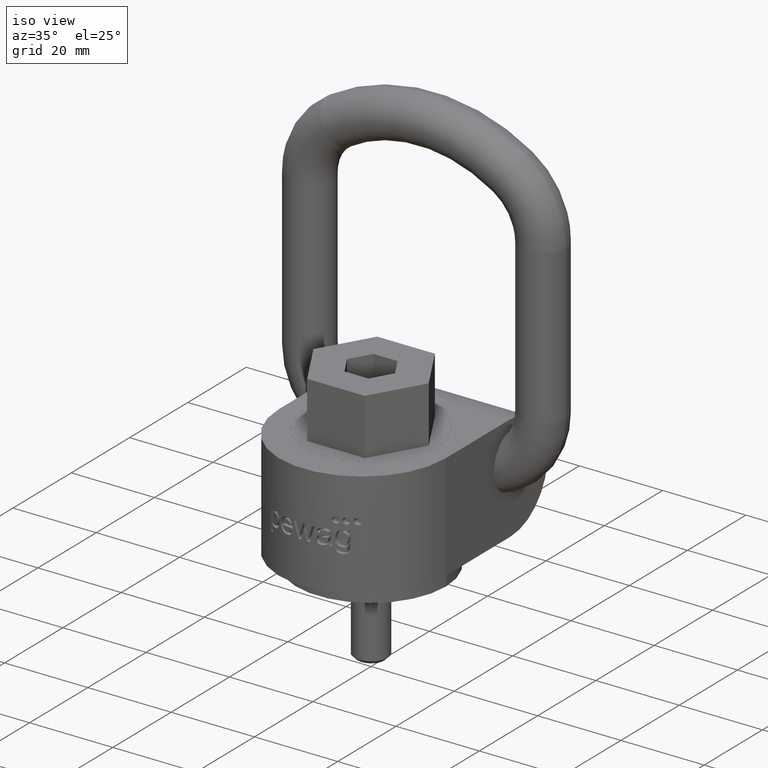
[diagram: clean part render]
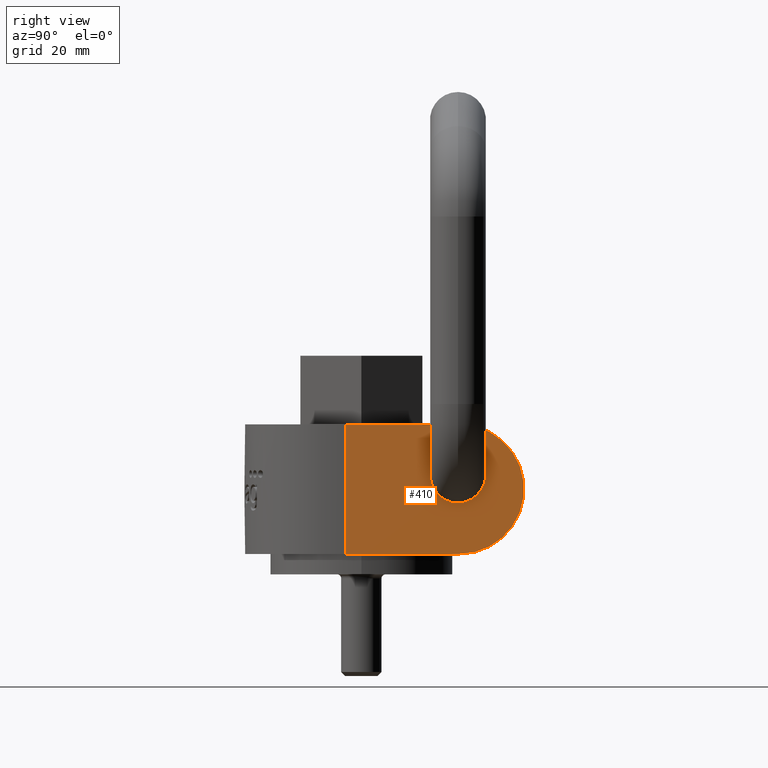
[diagram: tour spotlight — one face highlighted and labeled with its STEP entity id]
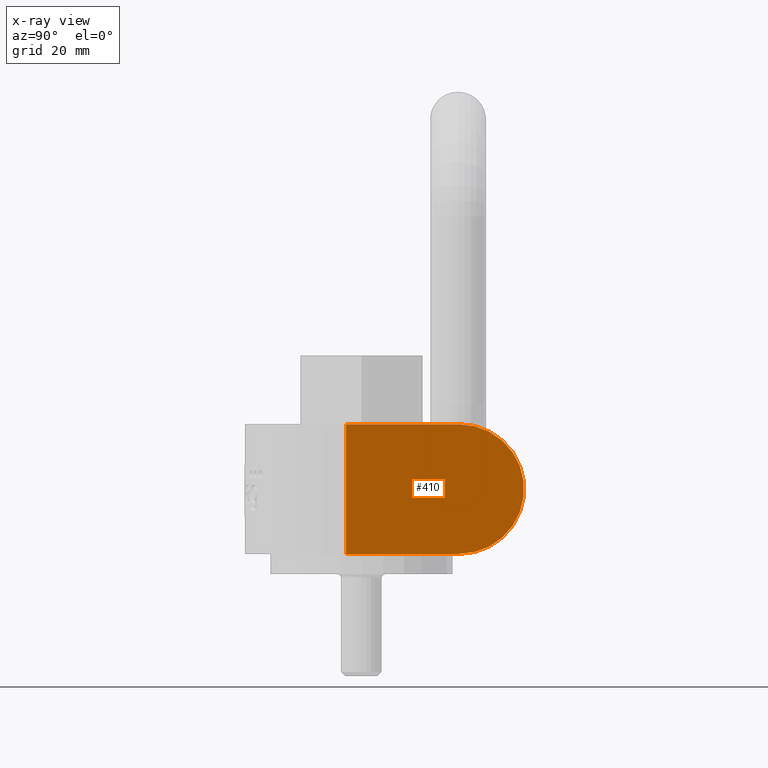
[diagram: x-ray of the same camera — body ghosted, this tour face saturated]
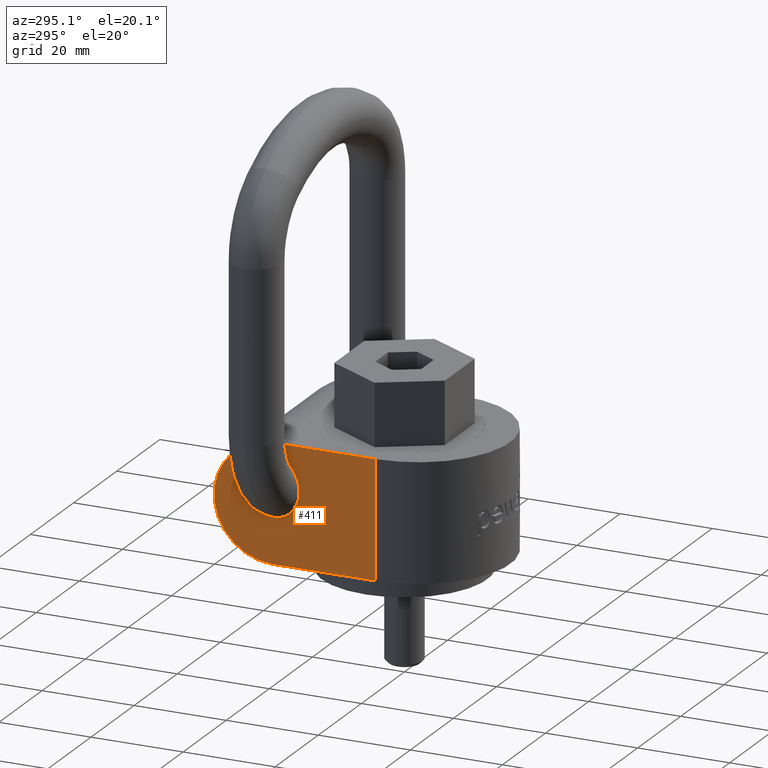
[diagram: tour spotlight — one face highlighted and labeled with its STEP entity id]
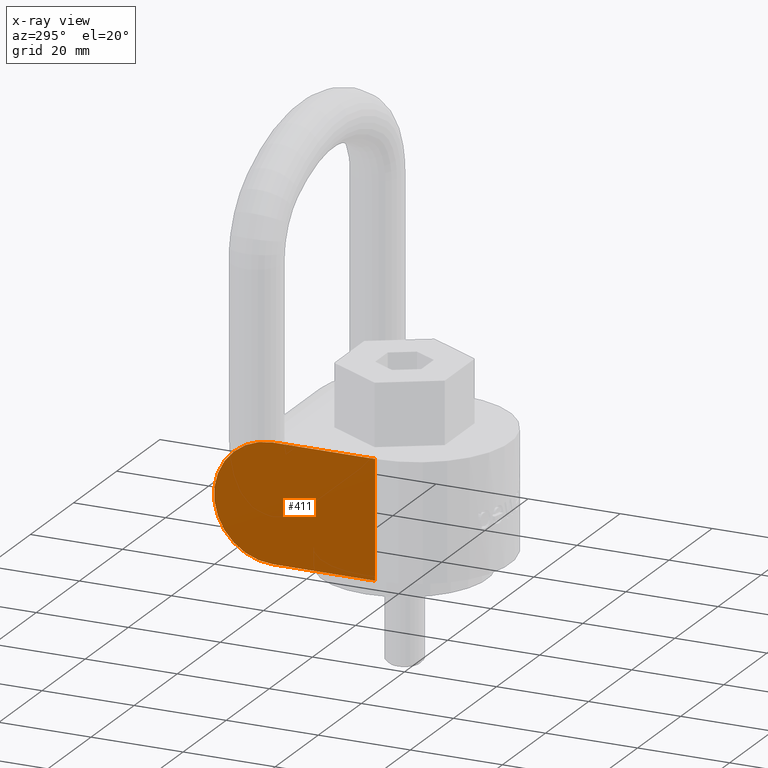
[diagram: x-ray of the same camera — body ghosted, this tour face saturated]
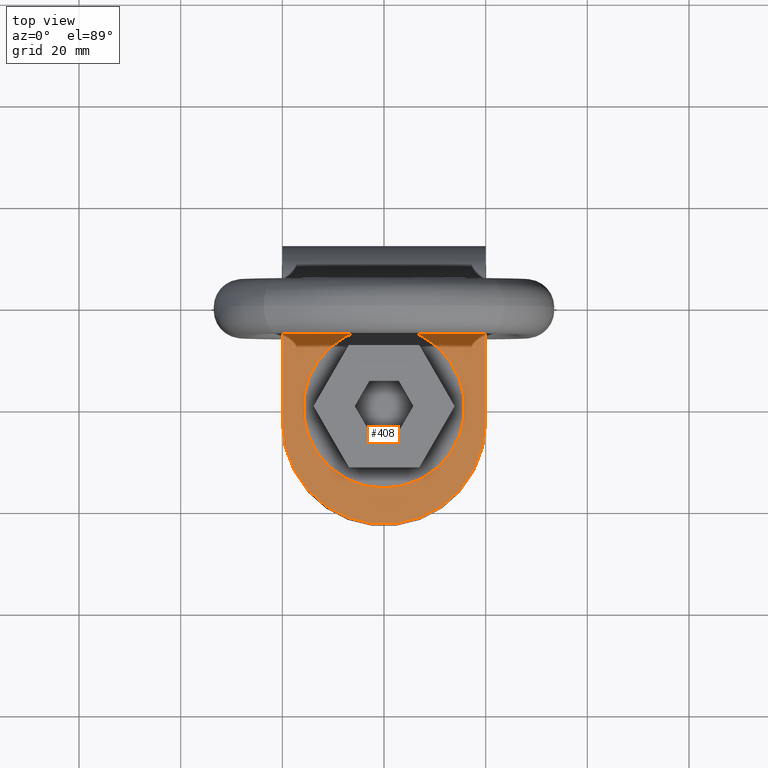
[diagram: tour spotlight — one face highlighted and labeled with its STEP entity id]
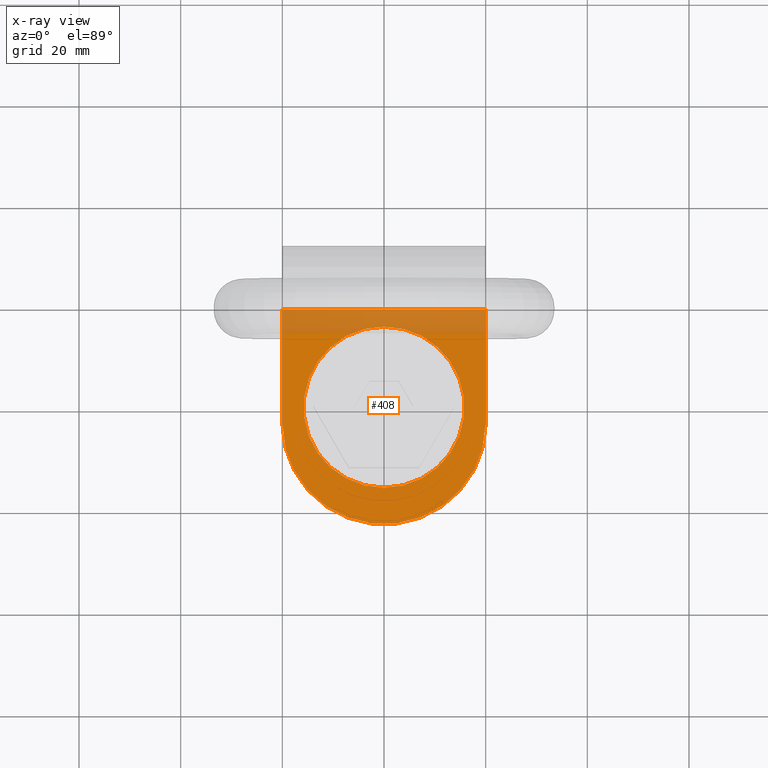
[diagram: x-ray of the same camera — body ghosted, this tour face saturated]
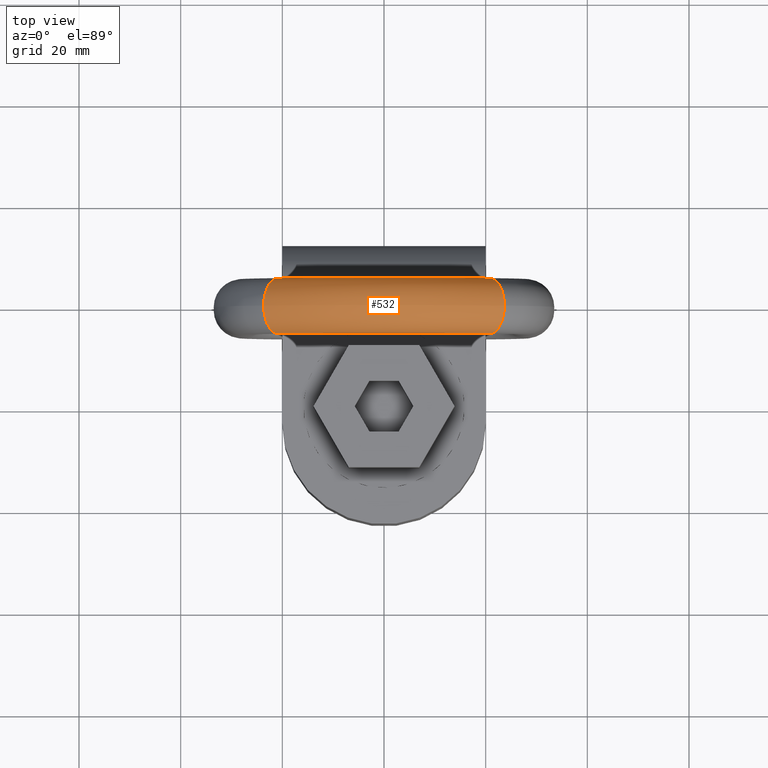
[diagram: tour spotlight — one face highlighted and labeled with its STEP entity id]
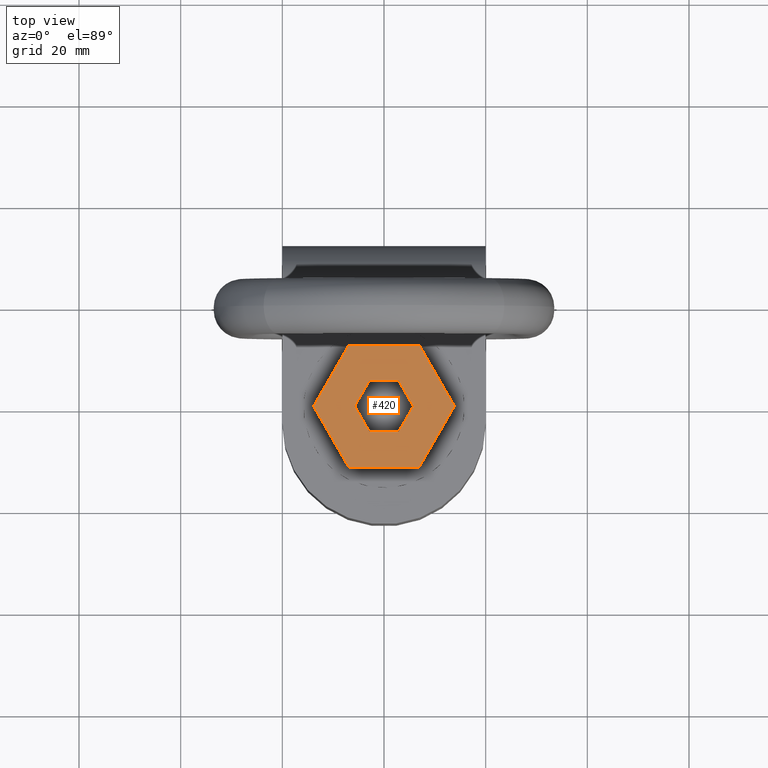
[diagram: tour spotlight — one face highlighted and labeled with its STEP entity id]
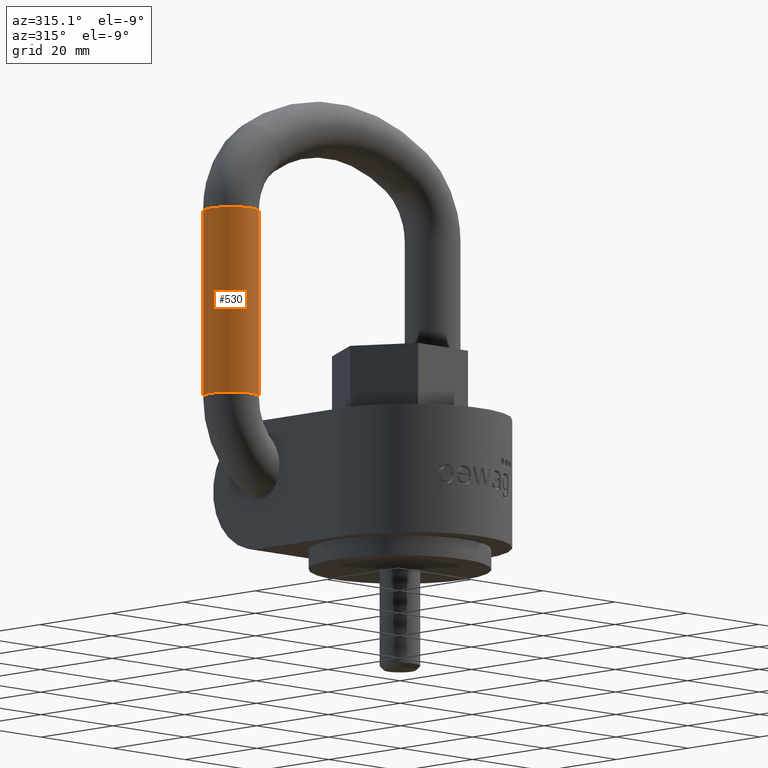
[diagram: tour spotlight — one face highlighted and labeled with its STEP entity id]
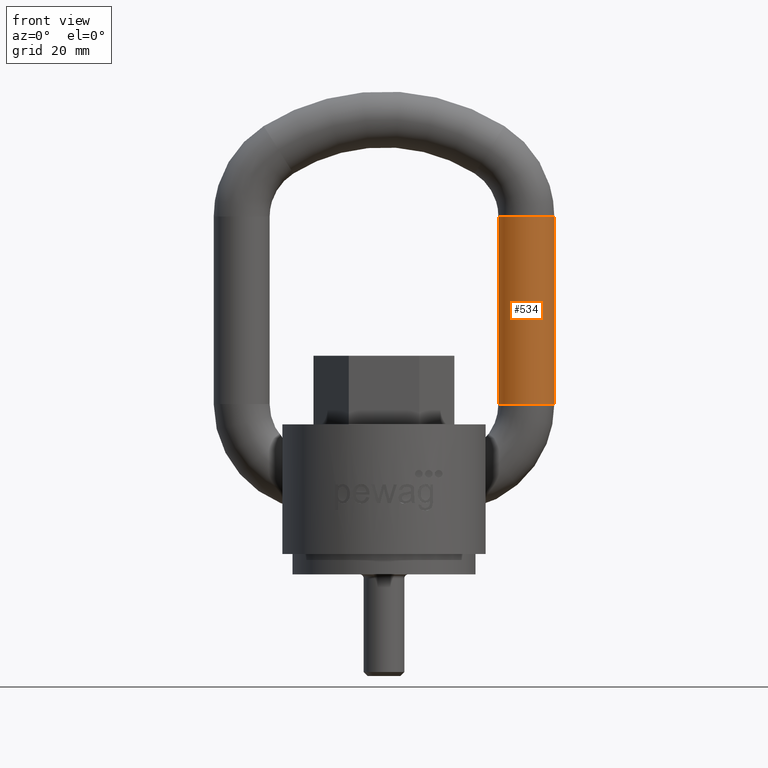
[diagram: tour spotlight — one face highlighted and labeled with its STEP entity id]
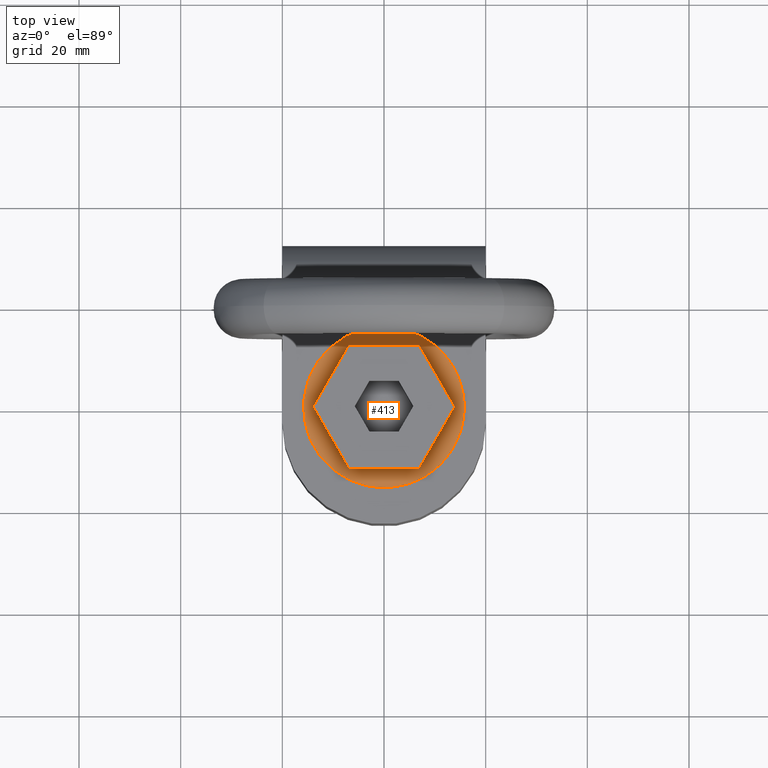
[diagram: tour spotlight — one face highlighted and labeled with its STEP entity id]
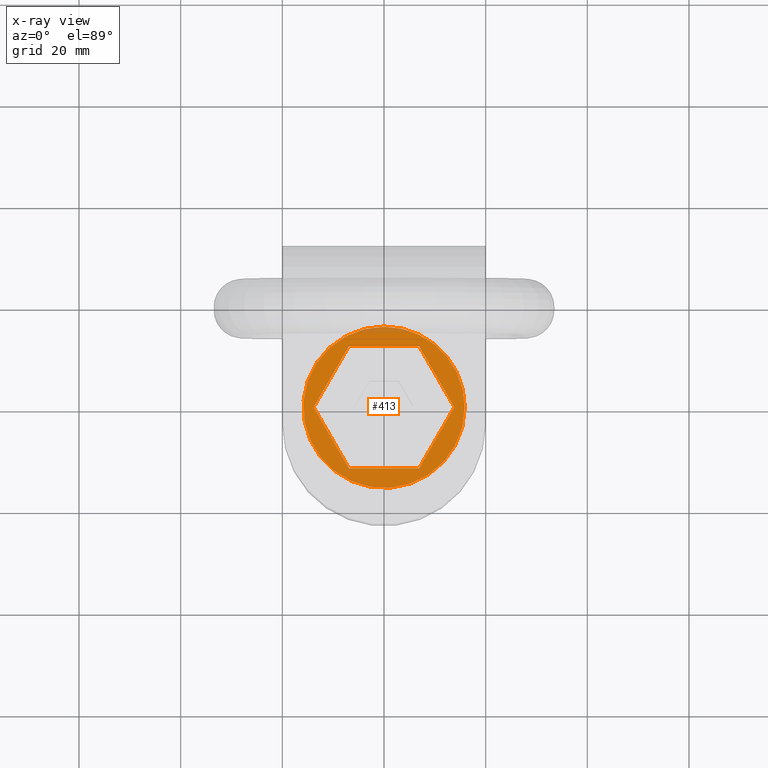
[diagram: x-ray of the same camera — body ghosted, this tour face saturated]
A machine part: a face-by-face anatomy tour. The part has 129 B-rep faces; the first image is the clean iso view, then the 8 largest visible faces are spotlighted one at a time (largest first), each with its STEP entity span.

Face 1 — right view, entity #410. An x-ray twin of the same camera follows (body ghosted, this face saturated) — the face is partly hidden behind the body. In plain terms, the highlighted planar face has unit normal (1, 0, 0).
Definition (entity closure, byte-faithful):
#245=FACE_OUTER_BOUND('',#639,.T.);
#349=PLANE('',#2455);
#410=ADVANCED_FACE('',(#245),#349,.T.);
#639=EDGE_LOOP('',(#1207,#1208,#1209,#1210));
#791=LINE('',#3673,#917);
#793=LINE('',#3797,#919);
#796=LINE('',#3805,#922);
#917=VECTOR('',#2614,1.);
#919=VECTOR('',#2620,1.);
#922=VECTOR('',#2627,1.);
#1104=CIRCLE('',#2453,12.755);
#1207=ORIENTED_EDGE('',*,*,#2015,.T.);
#1208=ORIENTED_EDGE('',*,*,#2006,.T.);
#1209=ORIENTED_EDGE('',*,*,#2011,.T.);
#1210=ORIENTED_EDGE('',*,*,#2020,.T.);
#1795=VERTEX_POINT('',#3671);
#1797=VERTEX_POINT('',#3674);
#1801=VERTEX_POINT('',#3798);
#1804=VERTEX_POINT('',#3806);
#2006=EDGE_CURVE('',#1797,#1795,#791,.T.);
#2011=EDGE_CURVE('',#1795,#1801,#793,.T.);
#2015=EDGE_CURVE('',#1804,#1797,#796,.T.);
#2020=EDGE_CURVE('',#1801,#1804,#1104,.T.);
#2453=AXIS2_PLACEMENT_3D('',#3814,#2636,#2637);
#2455=AXIS2_PLACEMENT_3D('',#3816,#2640,#2641);
#2614=DIRECTION('',(0.,-1.3600340854385E-16,-1.));
#2620=DIRECTION('',(0.,1.,1.15577451087051E-16));
#2627=DIRECTION('',(0.,-1.,3.28507227075736E-16));
#2636=DIRECTION('',(1.,0.,0.));
#2637=DIRECTION('',(0.,1.,0.));
#2640=DIRECTION('',(1.,0.,0.));
#2641=DIRECTION('',(0.,0.,-1.));
#3671=CARTESIAN_POINT('',(20.,-3.00000000000001,9.36697495355901E-16));
#3673=CARTESIAN_POINT('',(20.,-3.00000000000001,-3.46944695195361E-15));
#3674=CARTESIAN_POINT('',(20.,-3.00000000000001,25.51));
#3797=CARTESIAN_POINT('',(20.,-23.,-1.37485152638513E-15));
#3798=CARTESIAN_POINT('',(20.,19.245,3.50771789478736E-15));
#3805=CARTESIAN_POINT('',(20.,19.245,25.51));
#3806=CARTESIAN_POINT('',(20.,19.245,25.51));
#3814=CARTESIAN_POINT('',(20.,19.245,12.755));
#3816=CARTESIAN_POINT('',(20.,19.245,12.755));

Face 2 — auxiliary view, entity #411. An x-ray twin of the same camera follows (body ghosted, this face saturated) — the face is partly hidden behind the body. In plain terms, the highlighted planar face has unit normal (1, 0, 0).
Definition (entity closure, byte-faithful):
#246=FACE_OUTER_BOUND('',#640,.T.);
#350=PLANE('',#2456);
#411=ADVANCED_FACE('',(#246),#350,.F.);
#640=EDGE_LOOP('',(#1211,#1212,#1213,#1214));
#792=LINE('',#3677,#918);
#794=LINE('',#3799,#920);
#798=LINE('',#3809,#924);
#918=VECTOR('',#2617,1.);
#920=VECTOR('',#2621,1.);
#924=VECTOR('',#2629,1.);
#1103=CIRCLE('',#2452,12.755);
#1211=ORIENTED_EDGE('',*,*,#2012,.F.);
#1212=ORIENTED_EDGE('',*,*,#2008,.T.);
#1213=ORIENTED_EDGE('',*,*,#2017,.F.);
#1214=ORIENTED_EDGE('',*,*,#2019,.F.);
#1796=VERTEX_POINT('',#3672);
#1798=VERTEX_POINT('',#3676);
#1802=VERTEX_POINT('',#3800);
#1805=VERTEX_POINT('',#3808);
#2008=EDGE_CURVE('',#1796,#1798,#792,.T.);
#2012=EDGE_CURVE('',#1796,#1802,#794,.T.);
#2017=EDGE_CURVE('',#1805,#1798,#798,.T.);
#2019=EDGE_CURVE('',#1802,#1805,#1103,.T.);
#2452=AXIS2_PLACEMENT_3D('',#3813,#2634,#2635);
#2456=AXIS2_PLACEMENT_3D('',#3817,#2642,#2643);
#2617=DIRECTION('',(0.,1.3600340854385E-16,1.));
#2621=DIRECTION('',(0.,1.,1.15577451087051E-16));
#2629=DIRECTION('',(0.,-1.,3.28507227075736E-16));
#2634=DIRECTION('',(1.,0.,0.));
#2635=DIRECTION('',(0.,1.,0.));
#2642=DIRECTION('',(1.,0.,0.));
#2643=DIRECTION('',(0.,0.,-1.));
#3672=CARTESIAN_POINT('',(-20.,-3.00000000000001,9.36697495355901E-16));
#3676=CARTESIAN_POINT('',(-20.,-3.00000000000001,25.51));
#3677=CARTESIAN_POINT('',(-20.,-3.00000000000001,12.755));
#3799=CARTESIAN_POINT('',(-20.,-23.,-1.37485152638513E-15));
#3800=CARTESIAN_POINT('',(-20.,19.245,3.50771789478736E-15));
#3808=CARTESIAN_POINT('',(-20.,19.245,25.51));
#3809=CARTESIAN_POINT('',(-20.,19.245,25.51));
#3813=CARTESIAN_POINT('',(-20.,19.245,12.755));
#3817=CARTESIAN_POINT('',(-20.,19.245,12.755));

Face 3 — top view, entity #408. An x-ray twin of the same camera follows (body ghosted, this face saturated) — the face is partly hidden behind the body. In plain terms, the highlighted planar face has unit normal (0, -0, -1).
Definition (entity closure, byte-faithful):
#348=PLANE('',#2451);
#408=ADVANCED_FACE('',(#577,#578),#348,.F.);
#577=FACE_BOUND('',#636,.T.);
#578=FACE_BOUND('',#637,.T.);
#636=EDGE_LOOP('',(#1198,#1199,#1200,#1201));
#637=EDGE_LOOP('',(#1202));
#796=LINE('',#3805,#922);
#797=LINE('',#3807,#923);
#798=LINE('',#3809,#924);
#922=VECTOR('',#2627,1.);
#923=VECTOR('',#2628,1.);
#924=VECTOR('',#2629,1.);
#1100=CIRCLE('',#2446,20.);
#1102=CIRCLE('',#2450,15.856406460551);
#1198=ORIENTED_EDGE('',*,*,#2007,.T.);
#1199=ORIENTED_EDGE('',*,*,#2015,.F.);
#1200=ORIENTED_EDGE('',*,*,#2016,.T.);
#1201=ORIENTED_EDGE('',*,*,#2017,.T.);
#1202=ORIENTED_EDGE('',*,*,#2018,.F.);
#1797=VERTEX_POINT('',#3674);
#1798=VERTEX_POINT('',#3676);
#1804=VERTEX_POINT('',#3806);
#1805=VERTEX_POINT('',#3808);
#1806=VERTEX_POINT('',#3811);
#2007=EDGE_CURVE('',#1798,#1797,#1100,.T.);
#2015=EDGE_CURVE('',#1804,#1797,#796,.T.);
#2016=EDGE_CURVE('',#1804,#1805,#797,.T.);
#2017=EDGE_CURVE('',#1805,#1798,#798,.T.);
#2018=EDGE_CURVE('',#1806,#1806,#1102,.T.);
#2446=AXIS2_PLACEMENT_3D('',#3675,#2615,#2616);
#2450=AXIS2_PLACEMENT_3D('',#3810,#2630,#2631);
#2451=AXIS2_PLACEMENT_3D('',#3812,#2632,#2633);
#2615=DIRECTION('',(0.,3.28507227075736E-16,1.));
#2616=DIRECTION('',(0.,1.,-3.46944695195361E-16));
#2627=DIRECTION('',(0.,-1.,3.28507227075736E-16));
#2628=DIRECTION('',(-1.,0.,0.));
#2629=DIRECTION('',(0.,-1.,3.28507227075736E-16));
#2630=DIRECTION('',(0.,3.28507227075736E-16,1.));
#2631=DIRECTION('',(0.,1.,-4.37608226124275E-16));
#2632=DIRECTION('',(0.,-3.28507227075736E-16,-1.));
#2633=DIRECTION('',(0.,1.,-3.29597460435593E-16));
#3674=CARTESIAN_POINT('',(20.,-3.00000000000001,25.51));
#3675=CARTESIAN_POINT('',(0.,-3.00000000000001,25.51));
#3676=CARTESIAN_POINT('',(-20.,-3.00000000000001,25.51));
#3805=CARTESIAN_POINT('',(20.,19.245,25.51));
#3806=CARTESIAN_POINT('',(20.,19.245,25.51));
#3807=CARTESIAN_POINT('',(20.,19.245,25.51));
#3808=CARTESIAN_POINT('',(-20.,19.245,25.51));
#3809=CARTESIAN_POINT('',(-20.,19.245,25.51));
#3810=CARTESIAN_POINT('',(0.,3.77191155802137E-15,25.51));
#3811=CARTESIAN_POINT('',(0.,15.856406460551,25.51));
#3812=CARTESIAN_POINT('',(20.,19.245,25.51));

Face 4 — top view, entity #532. In plain terms, the highlighted toroidal blend (fillet) surface has major radius 39 mm and minor (blend) radius 5.5 mm.
Definition (entity closure, byte-faithful):
#242=TOROIDAL_SURFACE('',#2546,39.,5.5);
#532=ADVANCED_FACE('',(#619,#620),#242,.T.);
#619=FACE_BOUND('',#781,.T.);
#620=FACE_BOUND('',#782,.T.);
#781=EDGE_LOOP('',(#1722));
#782=EDGE_LOOP('',(#1723));
#1117=CIRCLE('',#2543,5.5);
#1118=CIRCLE('',#2545,5.5);
#1722=ORIENTED_EDGE('',*,*,#2240,.T.);
#1723=ORIENTED_EDGE('',*,*,#2239,.F.);
#1935=VERTEX_POINT('',#5193);
#1936=VERTEX_POINT('',#5196);
#2239=EDGE_CURVE('',#1935,#1935,#1117,.T.);
#2240=EDGE_CURVE('',#1936,#1936,#1118,.T.);
#2543=AXIS2_PLACEMENT_3D('',#5192,#2975,#2976);
#2545=AXIS2_PLACEMENT_3D('',#5195,#2979,#2980);
#2546=AXIS2_PLACEMENT_3D('',#5197,#2981,#2982);
#2975=DIRECTION('',(-0.846797818814144,0.,-0.531914893617022));
#2976=DIRECTION('',(-0.531914893617021,0.,0.846797818814146));
#2979=DIRECTION('',(-0.846797818814145,0.,0.531914893617021));
#2980=DIRECTION('',(0.531914893617021,0.,0.846797818814146));
#2981=DIRECTION('',(0.,-1.,0.));
#2982=DIRECTION('',(0.,0.,-1.));
#5192=CARTESIAN_POINT('',(-20.7446808510639,19.,79.5251149337516));
#5193=CARTESIAN_POINT('',(-23.6702127659575,19.,84.1825029372294));
#5195=CARTESIAN_POINT('',(20.7446808510638,19.,79.5251149337516));
#5196=CARTESIAN_POINT('',(23.6702127659575,19.,84.1825029372294));
#5197=CARTESIAN_POINT('',(0.,19.,46.5));

Face 5 — top view, entity #420. In plain terms, the highlighted planar face has unit normal (0, 0, 1).
Definition (entity closure, byte-faithful):
#358=PLANE('',#2466);
#420=ADVANCED_FACE('',(#583,#584),#358,.T.);
#583=FACE_BOUND('',#651,.T.);
#584=FACE_BOUND('',#652,.T.);
#651=EDGE_LOOP('',(#1248,#1249,#1250,#1251,#1252,#1253));
#652=EDGE_LOOP('',(#1254,#1255,#1256,#1257,#1258,#1259));
#806=LINE('',#3836,#932);
#809=LINE('',#3842,#935);
#811=LINE('',#3846,#937);
#813=LINE('',#3850,#939);
#815=LINE('',#3854,#941);
#816=LINE('',#3856,#942);
#817=LINE('',#3858,#943);
#818=LINE('',#3861,#944);
#819=LINE('',#3863,#945);
#820=LINE('',#3865,#946);
#821=LINE('',#3867,#947);
#822=LINE('',#3869,#948);
#932=VECTOR('',#2657,1.);
#935=VECTOR('',#2662,1.);
#937=VECTOR('',#2666,1.);
#939=VECTOR('',#2670,1.);
#941=VECTOR('',#2674,1.);
#942=VECTOR('',#2677,1.);
#943=VECTOR('',#2680,1.);
#944=VECTOR('',#2681,1.);
#945=VECTOR('',#2682,1.);
#946=VECTOR('',#2683,1.);
#947=VECTOR('',#2684,1.);
#948=VECTOR('',#2685,1.);
#1248=ORIENTED_EDGE('',*,*,#2040,.F.);
#1249=ORIENTED_EDGE('',*,*,#2041,.F.);
#1250=ORIENTED_EDGE('',*,*,#2042,.F.);
#1251=ORIENTED_EDGE('',*,*,#2043,.F.);
#1252=ORIENTED_EDGE('',*,*,#2044,.F.);
#1253=ORIENTED_EDGE('',*,*,#2045,.F.);
#1254=ORIENTED_EDGE('',*,*,#2029,.T.);
#1255=ORIENTED_EDGE('',*,*,#2032,.T.);
#1256=ORIENTED_EDGE('',*,*,#2034,.T.);
#1257=ORIENTED_EDGE('',*,*,#2036,.T.);
#1258=ORIENTED_EDGE('',*,*,#2038,.T.);
#1259=ORIENTED_EDGE('',*,*,#2039,.T.);
#1814=VERTEX_POINT('',#3835);
#1815=VERTEX_POINT('',#3837);
#1816=VERTEX_POINT('',#3841);
#1817=VERTEX_POINT('',#3845);
#1818=VERTEX_POINT('',#3849);
#1819=VERTEX_POINT('',#3853);
#1820=VERTEX_POINT('',#3859);
#1821=VERTEX_POINT('',#3860);
#1822=VERTEX_POINT('',#3862);
#1823=VERTEX_POINT('',#3864);
#1824=VERTEX_POINT('',#3866);
#1825=VERTEX_POINT('',#3868);
#2029=EDGE_CURVE('',#1815,#1814,#806,.T.);
#2032=EDGE_CURVE('',#1814,#1816,#809,.T.);
#2034=EDGE_CURVE('',#1816,#1817,#811,.T.);
#2036=EDGE_CURVE('',#1817,#1818,#813,.T.);
#2038=EDGE_CURVE('',#1818,#1819,#815,.T.);
#2039=EDGE_CURVE('',#1819,#1815,#816,.T.);
#2040=EDGE_CURVE('',#1820,#1821,#817,.T.);
#2041=EDGE_CURVE('',#1822,#1820,#818,.T.);
#2042=EDGE_CURVE('',#1823,#1822,#819,.T.);
#2043=EDGE_CURVE('',#1824,#1823,#820,.T.);
#2044=EDGE_CURVE('',#1825,#1824,#821,.T.);
#2045=EDGE_CURVE('',#1821,#1825,#822,.T.);
#2466=AXIS2_PLACEMENT_3D('',#3870,#2686,#2687);
#2657=DIRECTION('',(0.5,-0.866025403784438,2.50385766456193E-16));
#2662=DIRECTION('',(1.,-1.25192883228097E-16,0.));
#2666=DIRECTION('',(0.5,0.866025403784438,-2.50385766456193E-16));
#2670=DIRECTION('',(-0.5,0.866025403784439,-2.50385766456193E-16));
#2674=DIRECTION('',(-1.,-1.25192883228097E-16,0.));
#2677=DIRECTION('',(-0.5,-0.866025403784438,2.50385766456193E-16));
#2680=DIRECTION('',(0.500000000000001,-0.866025403784438,0.));
#2681=DIRECTION('',(-0.5,-0.866025403784438,0.));
#2682=DIRECTION('',(-1.,-3.00462919747432E-16,0.));
#2683=DIRECTION('',(-0.5,0.866025403784438,0.));
#2684=DIRECTION('',(0.5,0.866025403784438,0.));
#2685=DIRECTION('',(1.,0.,0.));
#2686=DIRECTION('',(3.61958389268337E-32,2.89120579329468E-16,1.));
#2687=DIRECTION('',(0.,-1.,2.91433543964104E-16));
#3835=CARTESIAN_POINT('',(-6.92820323027551,-12.,39.));
#3836=CARTESIAN_POINT('',(-13.856406460551,-8.88178419700125E-15,39.));
#3837=CARTESIAN_POINT('',(-13.856406460551,-8.88178419700125E-15,39.));
#3841=CARTESIAN_POINT('',(6.92820323027551,-12.,39.));
#3842=CARTESIAN_POINT('',(-6.92820323027551,-12.,39.));
#3845=CARTESIAN_POINT('',(13.856406460551,-1.21430643318377E-14,39.));
#3846=CARTESIAN_POINT('',(6.92820323027551,-12.,39.));
#3849=CARTESIAN_POINT('',(6.92820323027552,12.,39.));
#3850=CARTESIAN_POINT('',(13.856406460551,-1.06581410364015E-14,39.));
#3853=CARTESIAN_POINT('',(-6.92820323027551,12.,39.));
#3854=CARTESIAN_POINT('',(6.92820323027551,12.,39.));
#3856=CARTESIAN_POINT('',(-6.92820323027551,12.,39.));
#3858=CARTESIAN_POINT('',(-5.77350269189626,-1.77635683940025E-15,39.));
#3859=CARTESIAN_POINT('',(-5.77350269189626,-1.77635683940025E-15,39.));
#3860=CARTESIAN_POINT('',(-2.88675134594813,-5.,39.));
#3861=CARTESIAN_POINT('',(-2.88675134594813,5.,39.));
#3862=CARTESIAN_POINT('',(-2.88675134594813,5.,39.));
#3863=CARTESIAN_POINT('',(2.88675134594813,5.,39.));
#3864=CARTESIAN_POINT('',(2.88675134594813,5.,39.));
#3865=CARTESIAN_POINT('',(5.77350269189626,0.,39.));
#3866=CARTESIAN_POINT('',(5.77350269189626,8.67361737988404E-16,39.));
#3867=CARTESIAN_POINT('',(2.88675134594813,-5.,39.));
#3868=CARTESIAN_POINT('',(2.88675134594813,-5.,39.));
#3869=CARTESIAN_POINT('',(-2.88675134594813,-5.,39.));
#3870=CARTESIAN_POINT('',(9.22993892634259E-31,7.37257477290143E-15,39.));

Face 6 — auxiliary view, entity #530. In plain terms, the highlighted cylindrical surface (bore or boss wall) has radius 5.5 mm, axis along (-0, 0, -1).
Definition (entity closure, byte-faithful):
#530=ADVANCED_FACE('',(#615,#616),#551,.T.);
#551=CYLINDRICAL_SURFACE('',#2542,5.5);
#615=FACE_BOUND('',#777,.T.);
#616=FACE_BOUND('',#778,.T.);
#777=EDGE_LOOP('',(#1718));
#778=EDGE_LOOP('',(#1719));
#1115=CIRCLE('',#2539,5.5);
#1116=CIRCLE('',#2541,5.5);
#1718=ORIENTED_EDGE('',*,*,#2238,.T.);
#1719=ORIENTED_EDGE('',*,*,#2237,.F.);
#1933=VERTEX_POINT('',#5187);
#1934=VERTEX_POINT('',#5190);
#2237=EDGE_CURVE('',#1933,#1933,#1115,.T.);
#2238=EDGE_CURVE('',#1934,#1934,#1116,.T.);
#2539=AXIS2_PLACEMENT_3D('',#5186,#2967,#2968);
#2541=AXIS2_PLACEMENT_3D('',#5189,#2971,#2972);
#2542=AXIS2_PLACEMENT_3D('',#5191,#2973,#2974);
#2967=DIRECTION('',(3.33066907387547E-16,0.,-1.));
#2968=DIRECTION('',(-1.,0.,-6.30808536718839E-16));
#2971=DIRECTION('',(3.33066907387547E-16,0.,-1.));
#2972=DIRECTION('',(-1.,0.,0.));
#2973=DIRECTION('',(-9.62801590771806E-17,0.,-1.));
#2974=DIRECTION('',(-1.,0.,0.));
#5186=CARTESIAN_POINT('',(-28.,19.,29.5));
#5187=CARTESIAN_POINT('',(-33.5,19.,29.5));
#5189=CARTESIAN_POINT('',(-28.,19.,66.3997487421324));
#5190=CARTESIAN_POINT('',(-33.5,19.,66.3997487421324));
#5191=CARTESIAN_POINT('',(-28.,19.,66.3997487421324));

Face 7 — front view, entity #534. In plain terms, the highlighted cylindrical surface (bore or boss wall) has radius 5.5 mm, axis along (0, 0, -1).
Definition (entity closure, byte-faithful):
#534=ADVANCED_FACE('',(#623,#624),#552,.T.);
#552=CYLINDRICAL_SURFACE('',#2549,5.5);
#623=FACE_BOUND('',#785,.T.);
#624=FACE_BOUND('',#786,.T.);
#785=EDGE_LOOP('',(#1726));
#786=EDGE_LOOP('',(#1727));
#1113=CIRCLE('',#2535,5.5);
#1119=CIRCLE('',#2547,5.5);
#1726=ORIENTED_EDGE('',*,*,#2241,.F.);
#1727=ORIENTED_EDGE('',*,*,#2235,.T.);
#1931=VERTEX_POINT('',#5181);
#1937=VERTEX_POINT('',#5199);
#2235=EDGE_CURVE('',#1931,#1931,#1113,.T.);
#2241=EDGE_CURVE('',#1937,#1937,#1119,.T.);
#2535=AXIS2_PLACEMENT_3D('',#5180,#2959,#2960);
#2547=AXIS2_PLACEMENT_3D('',#5198,#2983,#2984);
#2549=AXIS2_PLACEMENT_3D('',#5201,#2987,#2988);
#2959=DIRECTION('',(6.77576192227313E-16,0.,1.));
#2960=DIRECTION('',(1.,0.,-6.30808536718839E-16));
#2983=DIRECTION('',(6.77576192227313E-16,0.,1.));
#2984=DIRECTION('',(1.,0.,0.));
#2987=DIRECTION('',(9.62801590771806E-17,0.,-1.));
#2988=DIRECTION('',(-1.,0.,0.));
#5180=CARTESIAN_POINT('',(28.,19.,29.5));
#5181=CARTESIAN_POINT('',(33.5,19.,29.5));
#5198=CARTESIAN_POINT('',(28.,19.,66.3997487421324));
#5199=CARTESIAN_POINT('',(33.5,19.,66.3997487421324));
#5201=CARTESIAN_POINT('',(28.,19.,66.3997487421324));

Face 8 — top view, entity #413. An x-ray twin of the same camera follows (body ghosted, this face saturated) — the face is partly hidden behind the body. In plain terms, the highlighted planar face has unit normal (0, 0, 1).
Definition (entity closure, byte-faithful):
#351=PLANE('',#2459);
#413=ADVANCED_FACE('',(#581,#582),#351,.T.);
#581=FACE_BOUND('',#643,.T.);
#582=FACE_BOUND('',#644,.T.);
#643=EDGE_LOOP('',(#1217,#1218,#1219,#1220,#1221,#1222));
#644=EDGE_LOOP('',(#1223));
#799=LINE('',#3821,#925);
#800=LINE('',#3824,#926);
#801=LINE('',#3826,#927);
#802=LINE('',#3828,#928);
#803=LINE('',#3830,#929);
#804=LINE('',#3832,#930);
#925=VECTOR('',#2648,1.);
#926=VECTOR('',#2649,1.);
#927=VECTOR('',#2650,1.);
#928=VECTOR('',#2651,1.);
#929=VECTOR('',#2652,1.);
#930=VECTOR('',#2653,1.);
#1105=CIRCLE('',#2457,15.856406460551);
#1217=ORIENTED_EDGE('',*,*,#2022,.F.);
#1218=ORIENTED_EDGE('',*,*,#2023,.F.);
#1219=ORIENTED_EDGE('',*,*,#2024,.F.);
#1220=ORIENTED_EDGE('',*,*,#2025,.F.);
#1221=ORIENTED_EDGE('',*,*,#2026,.F.);
#1222=ORIENTED_EDGE('',*,*,#2027,.F.);
#1223=ORIENTED_EDGE('',*,*,#2021,.F.);
#1807=VERTEX_POINT('',#3819);
#1808=VERTEX_POINT('',#3822);
#1809=VERTEX_POINT('',#3823);
#1810=VERTEX_POINT('',#3825);
#1811=VERTEX_POINT('',#3827);
#1812=VERTEX_POINT('',#3829);
#1813=VERTEX_POINT('',#3831);
#2021=EDGE_CURVE('',#1807,#1807,#1105,.T.);
#2022=EDGE_CURVE('',#1808,#1809,#799,.T.);
#2023=EDGE_CURVE('',#1810,#1808,#800,.T.);
#2024=EDGE_CURVE('',#1811,#1810,#801,.T.);
#2025=EDGE_CURVE('',#1812,#1811,#802,.T.);
#2026=EDGE_CURVE('',#1813,#1812,#803,.T.);
#2027=EDGE_CURVE('',#1809,#1813,#804,.T.);
#2457=AXIS2_PLACEMENT_3D('',#3818,#2644,#2645);
#2459=AXIS2_PLACEMENT_3D('',#3833,#2654,#2655);
#2644=DIRECTION('',(0.,0.,-1.));
#2645=DIRECTION('',(1.,0.,0.));
#2648=DIRECTION('',(0.5,-0.866025403784438,2.50385766456193E-16));
#2649=DIRECTION('',(-0.5,-0.866025403784438,2.50385766456193E-16));
#2650=DIRECTION('',(-1.,-1.25192883228097E-16,0.));
#2651=DIRECTION('',(-0.5,0.866025403784439,-2.50385766456193E-16));
#2652=DIRECTION('',(0.5,0.866025403784438,-2.50385766456193E-16));
#2653=DIRECTION('',(1.,-1.25192883228097E-16,0.));
#2654=DIRECTION('',(0.,0.,1.));
#2655=DIRECTION('',(1.,0.,0.));
#3818=CARTESIAN_POINT('',(0.,3.77191155802137E-15,25.5));
#3819=CARTESIAN_POINT('',(15.856406460551,3.77191155802137E-15,25.5));
#3821=CARTESIAN_POINT('',(-13.856406460551,-8.88178419700125E-15,25.5));
#3822=CARTESIAN_POINT('',(-13.856406460551,-8.88178419700125E-15,25.5));
#3823=CARTESIAN_POINT('',(-6.92820323027551,-12.,25.5));
#3824=CARTESIAN_POINT('',(-6.92820323027551,12.,25.5));
#3825=CARTESIAN_POINT('',(-6.92820323027551,12.,25.5));
#3826=CARTESIAN_POINT('',(6.92820323027551,12.,25.5));
#3827=CARTESIAN_POINT('',(6.92820323027552,12.,25.5));
#3828=CARTESIAN_POINT('',(13.856406460551,-1.06581410364015E-14,25.5));
#3829=CARTESIAN_POINT('',(13.856406460551,-1.21430643318377E-14,25.5));
#3830=CARTESIAN_POINT('',(6.92820323027551,-12.,25.5));
#3831=CARTESIAN_POINT('',(6.92820323027551,-12.,25.5));
#3832=CARTESIAN_POINT('',(-6.92820323027551,-12.,25.5));
#3833=CARTESIAN_POINT('',(0.,3.77191155802137E-15,25.5));